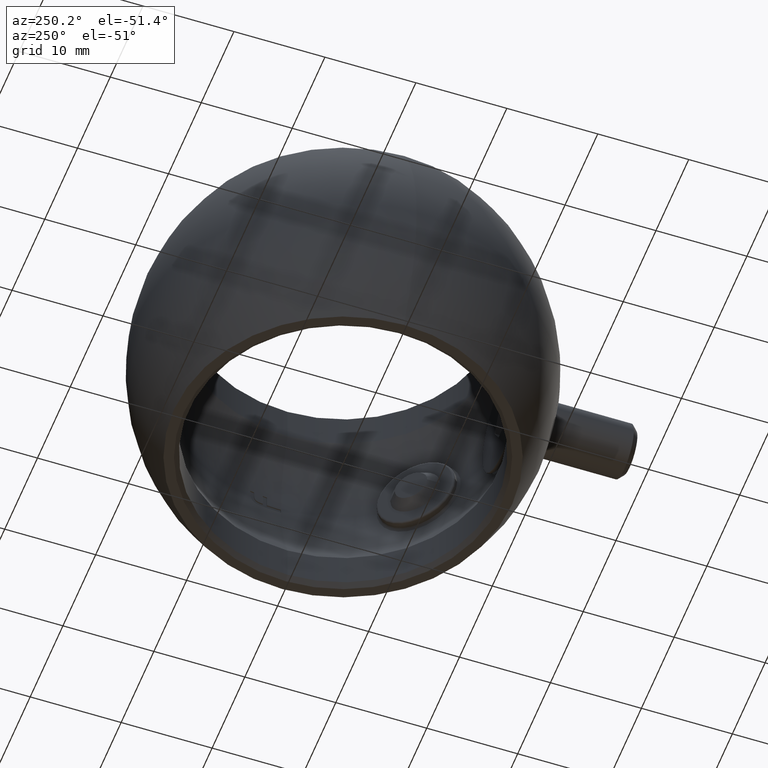
[diagram: clean part render]
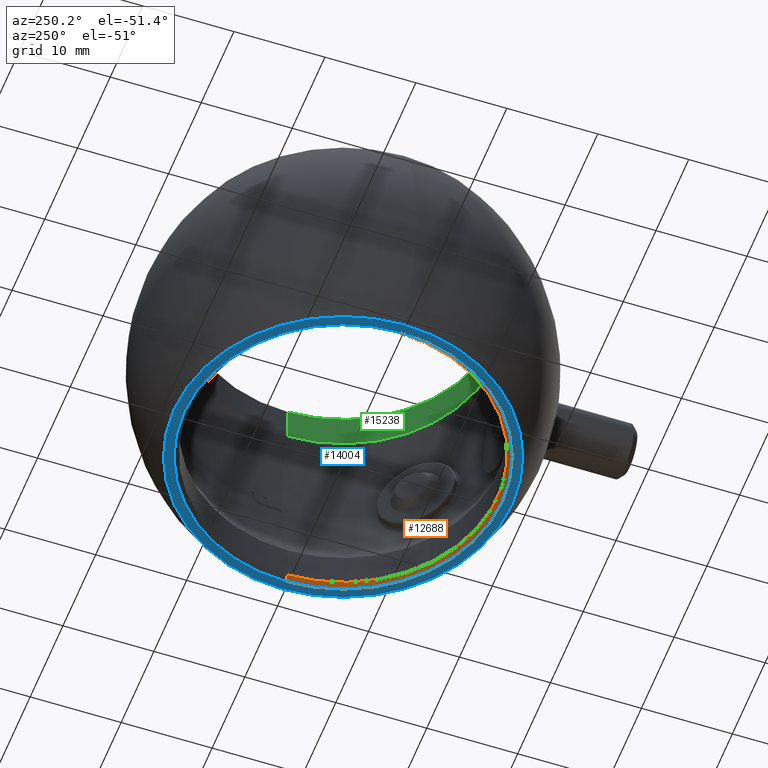
[diagram: same view with three faces highlighted in distinct colors, each labeled with its STEP entity id]
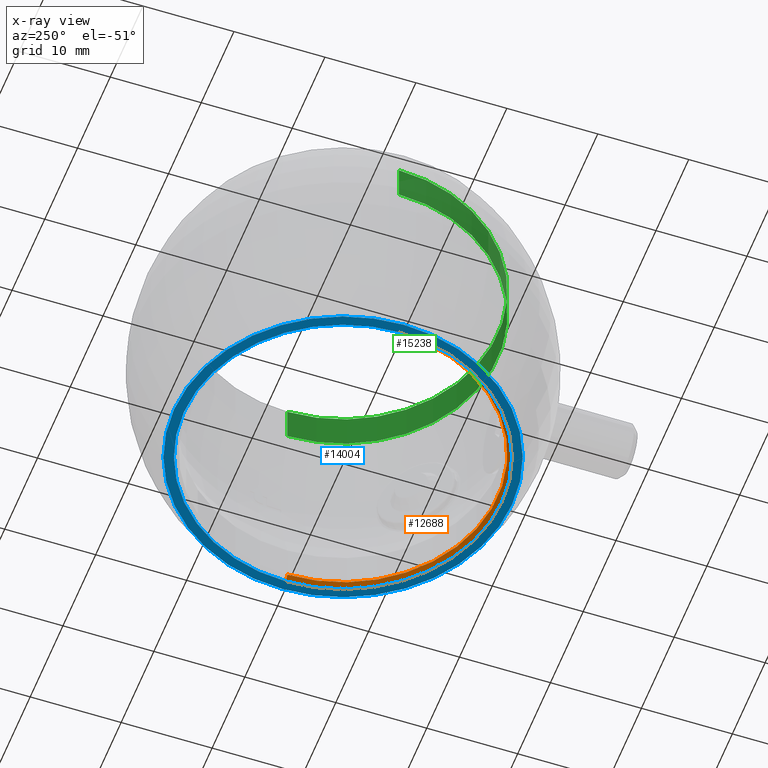
[diagram: x-ray of the same camera — body ghosted, the three highlighted faces saturated]
A machine part, auxiliary view with three faces highlighted in distinct colors.
The next image is the same camera in x-ray (body ghosted, the three faces saturated) — at least one of them is partly hidden behind the body in this view.
Their STEP definitions:

[orange] entity #12688 — the highlighted conical surface has half-angle 45 deg.
#679 = DIRECTION ( 'NONE',  ( -1.000000000000000000, 0.000000000000000000, 0.000000000000000000 ) ) ;
#766 = CARTESIAN_POINT ( 'NONE',  ( 17.50000000000000000, 2.143131898507868248E-15, -13.99999999999999822 ) ) ;
#3244 = FACE_OUTER_BOUND ( 'NONE', #8240, .T. ) ;
#3647 = CARTESIAN_POINT ( 'NONE',  ( 0.000000000000000000, 0.000000000000000000, -13.50000000000000178 ) ) ;
#4246 = LINE ( 'NONE', #10588, #6640 ) ;
#4805 = VERTEX_POINT ( 'NONE', #11773 ) ;
#5204 = ORIENTED_EDGE ( 'NONE', *, *, #9699, .F. ) ;
#5552 = VECTOR ( 'NONE', #10816, 1000.000000000000000 ) ;
#6439 = VERTEX_POINT ( 'NONE', #13004 ) ;
#6458 = CIRCLE ( 'NONE', #20850, 17.00000000000000000 ) ;
#6546 = AXIS2_PLACEMENT_3D ( 'NONE', #12670, #14440, #679 ) ;
#6640 = VECTOR ( 'NONE', #15720, 1000.000000000000000 ) ;
#7148 = EDGE_CURVE ( 'NONE', #6439, #11720, #4246, .T. ) ;
#8240 = EDGE_LOOP ( 'NONE', ( #14722, #17588, #10669, #5204 ) ) ;
#8776 = DIRECTION ( 'NONE',  ( 1.000000000000000000, 0.000000000000000000, 0.000000000000000000 ) ) ;
#9699 = EDGE_CURVE ( 'NONE', #4805, #10145, #20265, .T. ) ;
#10145 = VERTEX_POINT ( 'NONE', #14291 ) ;
#10513 = DIRECTION ( 'NONE',  ( -0.000000000000000000, -0.000000000000000000, 1.000000000000000000 ) ) ;
#10588 = CARTESIAN_POINT ( 'NONE',  ( 17.00000000000000000, 2.081899558550500280E-15, -13.50000000000000178 ) ) ;
#10669 = ORIENTED_EDGE ( 'NONE', *, *, #15765, .F. ) ;
#10816 = DIRECTION ( 'NONE',  ( -0.7071067811865500152, 0.000000000000000000, -0.7071067811865450192 ) ) ;
#11720 = VERTEX_POINT ( 'NONE', #766 ) ;
#11772 = CONICAL_SURFACE ( 'NONE', #6546, 17.00000000000000000, 0.7853981633974518317 ) ;
#11773 = CARTESIAN_POINT ( 'NONE',  ( -17.00000000000000000, 0.000000000000000000, -13.50000000000000178 ) ) ;
#12670 = CARTESIAN_POINT ( 'NONE',  ( 0.000000000000000000, 0.000000000000000000, -13.50000000000000178 ) ) ;
#12688 = ADVANCED_FACE ( 'NONE', ( #3244 ), #11772, .F. ) ;
#13004 = CARTESIAN_POINT ( 'NONE',  ( 17.00000000000000000, 2.112515728529184067E-15, -13.50000000000000178 ) ) ;
#13495 = CIRCLE ( 'NONE', #20045, 17.50000000000000000 ) ;
#14060 = DIRECTION ( 'NONE',  ( -0.000000000000000000, -0.000000000000000000, 1.000000000000000000 ) ) ;
#14291 = CARTESIAN_POINT ( 'NONE',  ( -17.50000000000000000, 0.000000000000000000, -13.99999999999999822 ) ) ;
#14440 = DIRECTION ( 'NONE',  ( 0.000000000000000000, 0.000000000000000000, -1.000000000000000000 ) ) ;
#14722 = ORIENTED_EDGE ( 'NONE', *, *, #17807, .T. ) ;
#15720 = DIRECTION ( 'NONE',  ( 0.7071067811865500152, 8.659560562354963673E-17, -0.7071067811865450192 ) ) ;
#15765 = EDGE_CURVE ( 'NONE', #10145, #11720, #13495, .T. ) ;
#15780 = DIRECTION ( 'NONE',  ( 1.000000000000000000, 0.000000000000000000, 0.000000000000000000 ) ) ;
#17588 = ORIENTED_EDGE ( 'NONE', *, *, #7148, .T. ) ;
#17807 = EDGE_CURVE ( 'NONE', #4805, #6439, #6458, .T. ) ;
#19484 = CARTESIAN_POINT ( 'NONE',  ( -17.00000000000000000, 0.000000000000000000, -13.50000000000000178 ) ) ;
#20045 = AXIS2_PLACEMENT_3D ( 'NONE', #20734, #14060, #8776 ) ;
#20265 = LINE ( 'NONE', #19484, #5552 ) ;
#20734 = CARTESIAN_POINT ( 'NONE',  ( 0.000000000000000000, 0.000000000000000000, -13.99999999999999822 ) ) ;
#20850 = AXIS2_PLACEMENT_3D ( 'NONE', #3647, #10513, #15780 ) ;

[blue] entity #14004 — the highlighted planar face has unit normal (0, 0, 1).
#466 = DIRECTION ( 'NONE',  ( 1.000000000000000000, 0.000000000000000000, 0.000000000000000000 ) ) ;
#617 = PLANE ( 'NONE',  #21308 ) ;
#766 = CARTESIAN_POINT ( 'NONE',  ( 17.50000000000000000, 2.143131898507868248E-15, -13.99999999999999822 ) ) ;
#1751 = CARTESIAN_POINT ( 'NONE',  ( -18.58679276123038804, 2.276225626145599495E-15, -13.99999999999999822 ) ) ;
#2730 = CIRCLE ( 'NONE', #3557, 18.58679276123038804 ) ;
#3557 = AXIS2_PLACEMENT_3D ( 'NONE', #19390, #17604, #466 ) ;
#4679 = CIRCLE ( 'NONE', #18478, 18.58679276123038804 ) ;
#5727 = DIRECTION ( 'NONE',  ( 0.000000000000000000, -0.000000000000000000, 1.000000000000000000 ) ) ;
#5756 = CARTESIAN_POINT ( 'NONE',  ( 0.000000000000000000, 0.000000000000000000, -13.99999999999999822 ) ) ;
#6145 = DIRECTION ( 'NONE',  ( -0.000000000000000000, -0.000000000000000000, 1.000000000000000000 ) ) ;
#7822 = EDGE_CURVE ( 'NONE', #11720, #10145, #19450, .T. ) ;
#8319 = EDGE_LOOP ( 'NONE', ( #18979, #14479 ) ) ;
#8776 = DIRECTION ( 'NONE',  ( 1.000000000000000000, 0.000000000000000000, 0.000000000000000000 ) ) ;
#8792 = VERTEX_POINT ( 'NONE', #17237 ) ;
#9647 = AXIS2_PLACEMENT_3D ( 'NONE', #5756, #10836, #17783 ) ;
#10145 = VERTEX_POINT ( 'NONE', #14291 ) ;
#10836 = DIRECTION ( 'NONE',  ( -0.000000000000000000, -0.000000000000000000, 1.000000000000000000 ) ) ;
#11099 = FACE_BOUND ( 'NONE', #20695, .T. ) ;
#11720 = VERTEX_POINT ( 'NONE', #766 ) ;
#12880 = CARTESIAN_POINT ( 'NONE',  ( 0.000000000000000000, 0.000000000000000000, -13.99999999999999822 ) ) ;
#13495 = CIRCLE ( 'NONE', #20045, 17.50000000000000000 ) ;
#13671 = ORIENTED_EDGE ( 'NONE', *, *, #7822, .T. ) ;
#14004 = ADVANCED_FACE ( 'NONE', ( #17776, #11099 ), #617, .F. ) ;
#14060 = DIRECTION ( 'NONE',  ( -0.000000000000000000, -0.000000000000000000, 1.000000000000000000 ) ) ;
#14229 = CARTESIAN_POINT ( 'NONE',  ( 0.000000000000000000, 17.50000000000000000, -13.99999999999999822 ) ) ;
#14291 = CARTESIAN_POINT ( 'NONE',  ( -17.50000000000000000, 0.000000000000000000, -13.99999999999999822 ) ) ;
#14479 = ORIENTED_EDGE ( 'NONE', *, *, #15174, .F. ) ;
#15174 = EDGE_CURVE ( 'NONE', #20243, #8792, #4679, .T. ) ;
#15765 = EDGE_CURVE ( 'NONE', #10145, #11720, #13495, .T. ) ;
#17237 = CARTESIAN_POINT ( 'NONE',  ( 18.58679276123038804, 0.000000000000000000, -13.99999999999999822 ) ) ;
#17604 = DIRECTION ( 'NONE',  ( -0.000000000000000000, -0.000000000000000000, 1.000000000000000000 ) ) ;
#17776 = FACE_OUTER_BOUND ( 'NONE', #8319, .T. ) ;
#17783 = DIRECTION ( 'NONE',  ( 1.000000000000000000, 0.000000000000000000, 0.000000000000000000 ) ) ;
#18317 = ORIENTED_EDGE ( 'NONE', *, *, #15765, .T. ) ;
#18478 = AXIS2_PLACEMENT_3D ( 'NONE', #12880, #6145, #19883 ) ;
#18686 = EDGE_CURVE ( 'NONE', #8792, #20243, #2730, .T. ) ;
#18979 = ORIENTED_EDGE ( 'NONE', *, *, #18686, .F. ) ;
#19390 = CARTESIAN_POINT ( 'NONE',  ( 0.000000000000000000, 0.000000000000000000, -13.99999999999999822 ) ) ;
#19450 = CIRCLE ( 'NONE', #9647, 17.50000000000000000 ) ;
#19883 = DIRECTION ( 'NONE',  ( 1.000000000000000000, 0.000000000000000000, 0.000000000000000000 ) ) ;
#20045 = AXIS2_PLACEMENT_3D ( 'NONE', #20734, #14060, #8776 ) ;
#20243 = VERTEX_POINT ( 'NONE', #1751 ) ;
#20695 = EDGE_LOOP ( 'NONE', ( #18317, #13671 ) ) ;
#20734 = CARTESIAN_POINT ( 'NONE',  ( 0.000000000000000000, 0.000000000000000000, -13.99999999999999822 ) ) ;
#21308 = AXIS2_PLACEMENT_3D ( 'NONE', #14229, #5727, #21470 ) ;
#21470 = DIRECTION ( 'NONE',  ( 1.000000000000000000, 0.000000000000000000, 0.000000000000000000 ) ) ;

[green] entity #15238 — the highlighted cylindrical surface (partial cylindrical patch) has radius 17 mm, axis along (0, 0, 1).
#345 = EDGE_CURVE ( 'NONE', #6440, #21624, #4703, .T. ) ;
#357 = DIRECTION ( 'NONE',  ( -0.000000000000000000, -0.000000000000000000, 1.000000000000000000 ) ) ;
#531 = ORIENTED_EDGE ( 'NONE', *, *, #17404, .T. ) ;
#1911 = CARTESIAN_POINT ( 'NONE',  ( -17.00000000000000000, 2.081899558550500280E-15, 13.99999999999999822 ) ) ;
#2708 = VECTOR ( 'NONE', #357, 1000.000000000000000 ) ;
#2796 = CARTESIAN_POINT ( 'NONE',  ( 0.000000000000000000, 0.000000000000000000, 13.99999999999999822 ) ) ;
#2830 = CARTESIAN_POINT ( 'NONE',  ( 17.00000000000000000, 0.000000000000000000, 13.50000000000000178 ) ) ;
#3603 = AXIS2_PLACEMENT_3D ( 'NONE', #2796, #9493, #11160 ) ;
#4703 = LINE ( 'NONE', #5345, #5493 ) ;
#5345 = CARTESIAN_POINT ( 'NONE',  ( 17.00000000000000000, 0.000000000000000000, 13.99999999999999822 ) ) ;
#5493 = VECTOR ( 'NONE', #8918, 1000.000000000000000 ) ;
#5661 = AXIS2_PLACEMENT_3D ( 'NONE', #6115, #18221, #13078 ) ;
#5674 = CIRCLE ( 'NONE', #21542, 16.99999999999999645 ) ;
#6115 = CARTESIAN_POINT ( 'NONE',  ( 0.000000000000000000, 0.000000000000000000, 13.50000000000000178 ) ) ;
#6440 = VERTEX_POINT ( 'NONE', #21432 ) ;
#7004 = ORIENTED_EDGE ( 'NONE', *, *, #345, .F. ) ;
#8048 = CARTESIAN_POINT ( 'NONE',  ( -17.00000000000000000, 2.081899558550500280E-15, 13.50000000000000178 ) ) ;
#8234 = DIRECTION ( 'NONE',  ( 1.000000000000000000, 0.000000000000000000, 0.000000000000000000 ) ) ;
#8918 = DIRECTION ( 'NONE',  ( -0.000000000000000000, -0.000000000000000000, 1.000000000000000000 ) ) ;
#9493 = DIRECTION ( 'NONE',  ( -0.000000000000000000, -0.000000000000000000, 1.000000000000000000 ) ) ;
#9730 = FACE_OUTER_BOUND ( 'NONE', #10916, .T. ) ;
#10916 = EDGE_LOOP ( 'NONE', ( #18789, #17233, #531, #7004 ) ) ;
#11160 = DIRECTION ( 'NONE',  ( 1.000000000000000000, 0.000000000000000000, 0.000000000000000000 ) ) ;
#13078 = DIRECTION ( 'NONE',  ( 1.000000000000000000, 0.000000000000000000, 0.000000000000000000 ) ) ;
#13669 = LINE ( 'NONE', #1911, #2708 ) ;
#15238 = ADVANCED_FACE ( 'NONE', ( #9730 ), #21762, .F. ) ;
#15261 = CARTESIAN_POINT ( 'NONE',  ( 0.000000000000000000, 0.000000000000000000, 9.486832980505141677 ) ) ;
#16534 = CARTESIAN_POINT ( 'NONE',  ( -16.99999999999999645, 2.081899558550499885E-15, 9.486832980505141677 ) ) ;
#16674 = DIRECTION ( 'NONE',  ( -0.000000000000000000, -0.000000000000000000, 1.000000000000000000 ) ) ;
#17233 = ORIENTED_EDGE ( 'NONE', *, *, #19757, .T. ) ;
#17404 = EDGE_CURVE ( 'NONE', #17451, #21624, #21184, .T. ) ;
#17451 = VERTEX_POINT ( 'NONE', #8048 ) ;
#18018 = EDGE_CURVE ( 'NONE', #18908, #6440, #5674, .T. ) ;
#18221 = DIRECTION ( 'NONE',  ( -0.000000000000000000, -0.000000000000000000, 1.000000000000000000 ) ) ;
#18789 = ORIENTED_EDGE ( 'NONE', *, *, #18018, .F. ) ;
#18908 = VERTEX_POINT ( 'NONE', #16534 ) ;
#19757 = EDGE_CURVE ( 'NONE', #18908, #17451, #13669, .T. ) ;
#21184 = CIRCLE ( 'NONE', #5661, 17.00000000000000000 ) ;
#21432 = CARTESIAN_POINT ( 'NONE',  ( 16.99999999999999645, 0.000000000000000000, 9.486832980505141677 ) ) ;
#21542 = AXIS2_PLACEMENT_3D ( 'NONE', #15261, #16674, #8234 ) ;
#21624 = VERTEX_POINT ( 'NONE', #2830 ) ;
#21762 = CYLINDRICAL_SURFACE ( 'NONE', #3603, 17.00000000000000000 ) ;